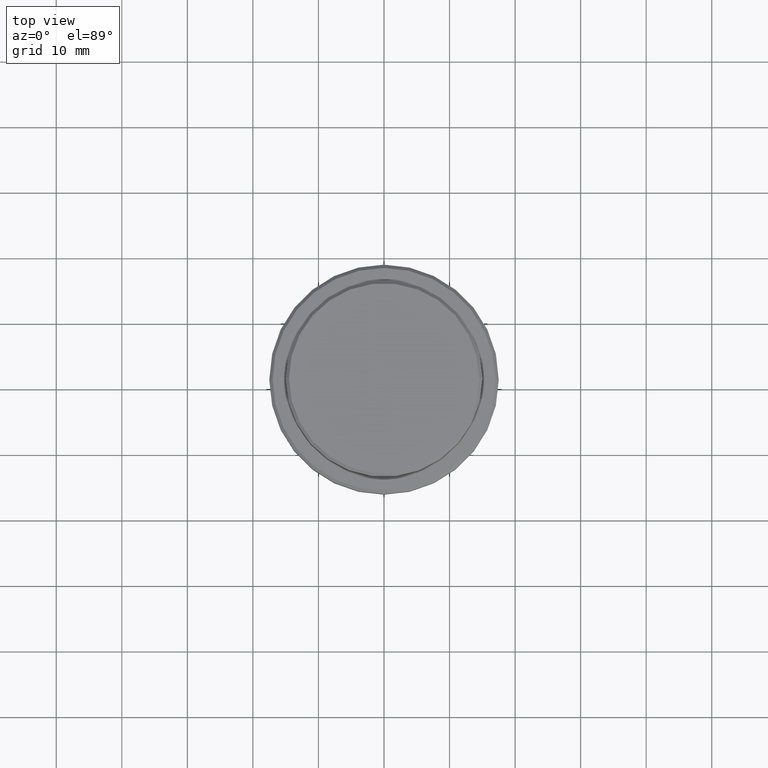
[diagram: clean part render]
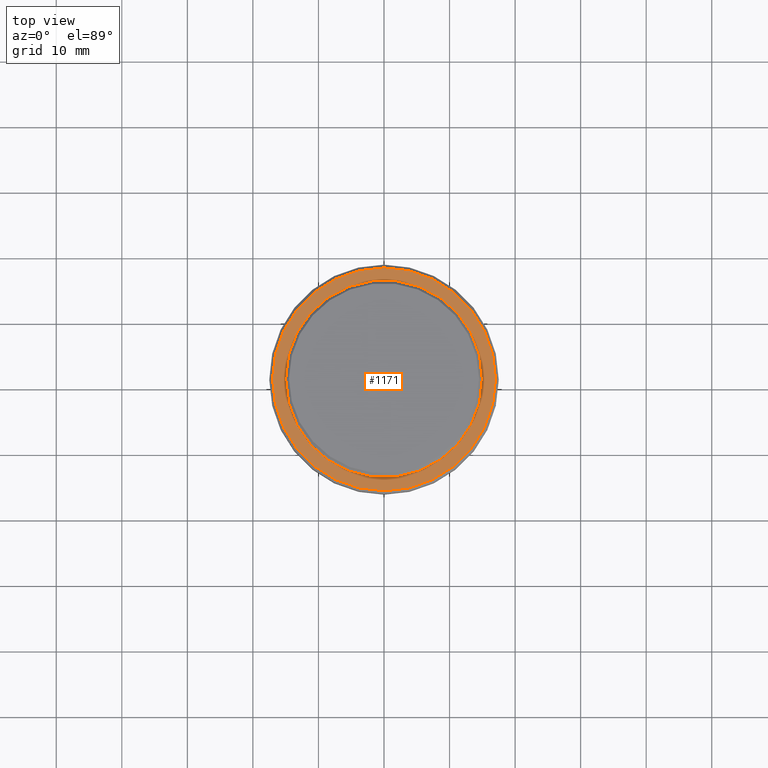
[diagram: same view with one face highlighted and labeled with its STEP entity id]
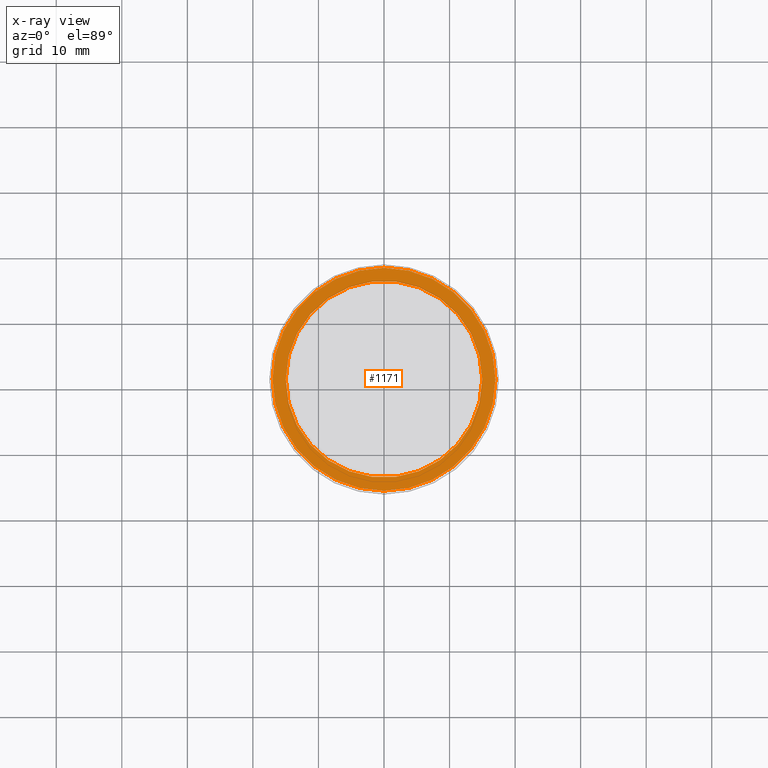
[diagram: x-ray of the same camera — body ghosted, the highlighted face saturated]
A machine part, top view. The second image highlights one B-rep face of the part: STEP entity #1171.
The next image is the same camera in x-ray: the body ghosted, the highlighted face saturated — about 0% of this face is hidden behind the body in this view.
In plain terms, the highlighted planar face has unit normal (0, -0, 1).
Its self-contained STEP definition (entity closure, byte-faithful):
#54 = DIRECTION ( 'NONE',  ( 1.000000000000000000, 0.000000000000000000, 0.000000000000000000 ) ) ;
#64 = DIRECTION ( 'NONE',  ( -0.000000000000000000, -0.000000000000000000, 1.000000000000000000 ) ) ;
#78 = VERTEX_POINT ( 'NONE', #316 ) ;
#89 = EDGE_CURVE ( 'NONE', #1045, #740, #1196, .T. ) ;
#136 = DIRECTION ( 'NONE',  ( -0.000000000000000000, -0.000000000000000000, 1.000000000000000000 ) ) ;
#231 = EDGE_CURVE ( 'NONE', #78, #1191, #1109, .T. ) ;
#278 = DIRECTION ( 'NONE',  ( 0.000000000000000000, -0.000000000000000000, 1.000000000000000000 ) ) ;
#287 = FACE_BOUND ( 'NONE', #1170, .T. ) ;
#316 = CARTESIAN_POINT ( 'NONE',  ( -16.99999999999997513, 0.000000000000000000, -9.000000000000000000 ) ) ;
#477 = CARTESIAN_POINT ( 'NONE',  ( 0.000000000000000000, 0.000000000000000000, -9.000000000000000000 ) ) ;
#490 = AXIS2_PLACEMENT_3D ( 'NONE', #477, #136, #1264 ) ;
#494 = EDGE_LOOP ( 'NONE', ( #516, #1157 ) ) ;
#516 = ORIENTED_EDGE ( 'NONE', *, *, #231, .T. ) ;
#547 = DIRECTION ( 'NONE',  ( 0.000000000000000000, 0.000000000000000000, -1.000000000000000000 ) ) ;
#571 = CARTESIAN_POINT ( 'NONE',  ( 0.000000000000000000, 0.000000000000000000, -9.000000000000000000 ) ) ;
#590 = CARTESIAN_POINT ( 'NONE',  ( 0.000000000000000000, 0.000000000000000000, -9.000000000000000000 ) ) ;
#628 = PLANE ( 'NONE',  #1047 ) ;
#726 = FACE_OUTER_BOUND ( 'NONE', #494, .T. ) ;
#740 = VERTEX_POINT ( 'NONE', #1179 ) ;
#750 = CARTESIAN_POINT ( 'NONE',  ( 0.000000000000000000, 14.49999999999999467, -9.000000000000000000 ) ) ;
#790 = DIRECTION ( 'NONE',  ( 1.000000000000000000, 0.000000000000000000, 0.000000000000000000 ) ) ;
#928 = CIRCLE ( 'NONE', #1345, 14.99999999999999289 ) ;
#947 = EDGE_CURVE ( 'NONE', #740, #1045, #928, .T. ) ;
#991 = DIRECTION ( 'NONE',  ( 1.000000000000000000, 0.000000000000000000, 0.000000000000000000 ) ) ;
#994 = AXIS2_PLACEMENT_3D ( 'NONE', #571, #1019, #790 ) ;
#1019 = DIRECTION ( 'NONE',  ( 0.000000000000000000, 0.000000000000000000, -1.000000000000000000 ) ) ;
#1021 = CARTESIAN_POINT ( 'NONE',  ( -14.99999999999999289, 1.836970198721028800E-15, -9.000000000000000000 ) ) ;
#1045 = VERTEX_POINT ( 'NONE', #1021 ) ;
#1047 = AXIS2_PLACEMENT_3D ( 'NONE', #750, #278, #1300 ) ;
#1094 = ORIENTED_EDGE ( 'NONE', *, *, #947, .T. ) ;
#1109 = CIRCLE ( 'NONE', #1246, 16.99999999999997513 ) ;
#1141 = CARTESIAN_POINT ( 'NONE',  ( 0.000000000000000000, 0.000000000000000000, -9.000000000000000000 ) ) ;
#1157 = ORIENTED_EDGE ( 'NONE', *, *, #1398, .T. ) ;
#1161 = CIRCLE ( 'NONE', #490, 16.99999999999997513 ) ;
#1170 = EDGE_LOOP ( 'NONE', ( #1094, #1278 ) ) ;
#1171 = ADVANCED_FACE ( 'NONE', ( #726, #287 ), #628, .T. ) ;
#1179 = CARTESIAN_POINT ( 'NONE',  ( 14.99999999999999289, 0.000000000000000000, -9.000000000000000000 ) ) ;
#1191 = VERTEX_POINT ( 'NONE', #1335 ) ;
#1196 = CIRCLE ( 'NONE', #994, 14.99999999999999289 ) ;
#1246 = AXIS2_PLACEMENT_3D ( 'NONE', #590, #64, #54 ) ;
#1264 = DIRECTION ( 'NONE',  ( 1.000000000000000000, 0.000000000000000000, 0.000000000000000000 ) ) ;
#1278 = ORIENTED_EDGE ( 'NONE', *, *, #89, .T. ) ;
#1300 = DIRECTION ( 'NONE',  ( 1.000000000000000000, 0.000000000000000000, 0.000000000000000000 ) ) ;
#1335 = CARTESIAN_POINT ( 'NONE',  ( 16.99999999999997513, 2.112515728529182883E-15, -9.000000000000000000 ) ) ;
#1345 = AXIS2_PLACEMENT_3D ( 'NONE', #1141, #547, #991 ) ;
#1398 = EDGE_CURVE ( 'NONE', #1191, #78, #1161, .T. ) ;